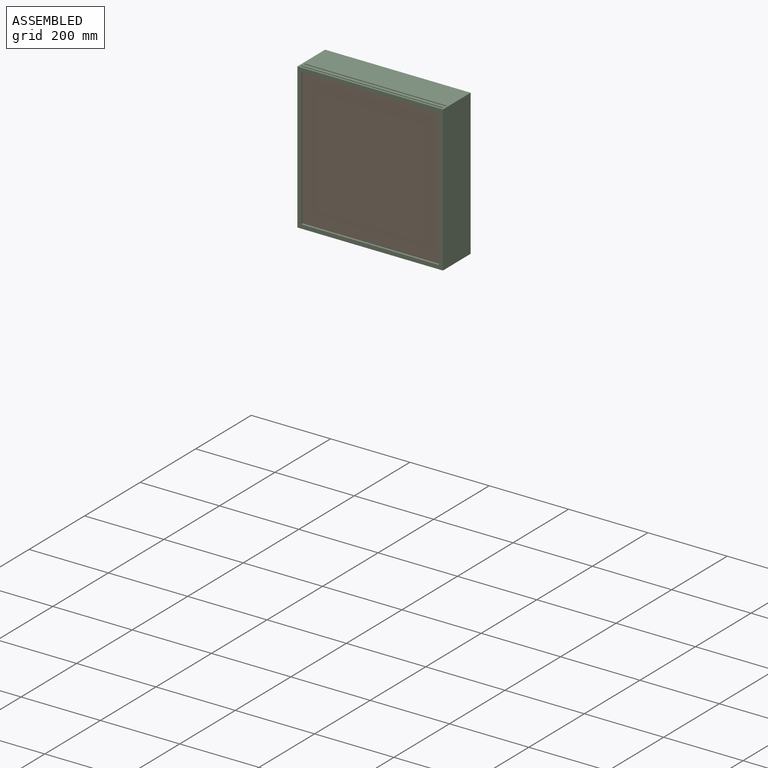
[diagram: assembled view]
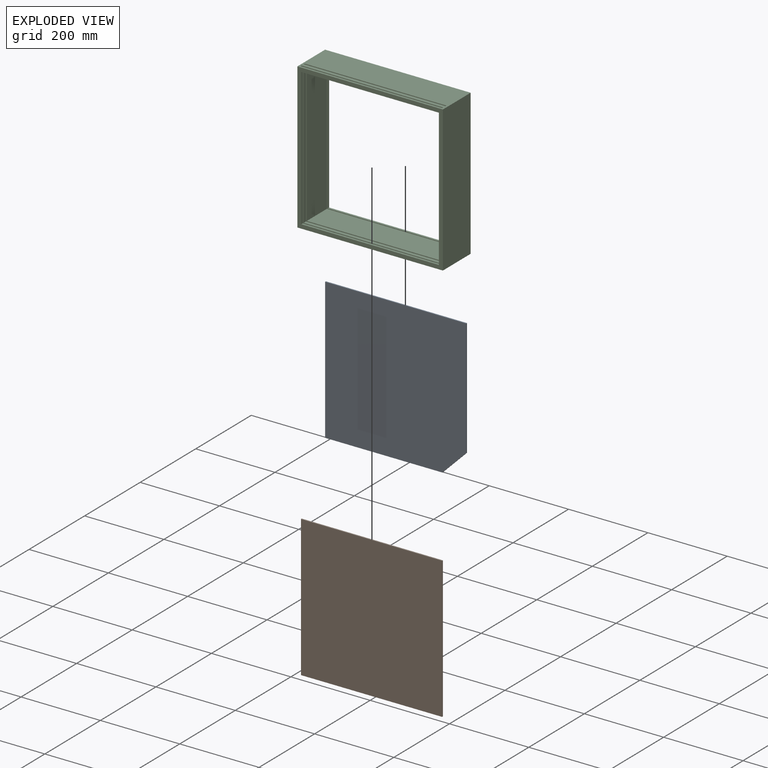
[diagram: exploded view]
GUIDED TOUR — MATED ASSEMBLY (Onshape document d42dfd3bdb61e19cc4f265ea, AutoMate assembly d42dfd3bdb61e19cc4f265ea_4f2ce7b2173d3fb183681990_f46ff38a29e73ddacb30ad9a_default)

This assembly has 3 components, labeled P0..P2 below (a component is one placed occurrence of a part; the same part can appear more than once), held together by 5 mates. A mate is a constraint between two components; its type names the relative motion it leaves free:
  PLANAR — leaves sliding in the plane through the listed point (normal = the listed direction) and rotation about that normal free.
Axis/direction vectors are unit vectors and 'through' points are millimeter coordinates, both in the assembly's world frame.

MATES
  1. PLANAR "Planar 5": P2 <-> P0, direction (0.000, 0.000, 1.000) through (0.00, 93.50, -178.50) mm
  2. PLANAR "Planar 2": P1 <-> P2, direction (0.000, 0.000, -1.000) through (0.00, 6.50, -178.50) mm
  3. PLANAR "Planar 3": P2 <-> P0, direction (1.000, 0.000, 0.000) through (-178.50, 93.50, 0.00) mm
  4. PLANAR "Planar 1": P1 <-> P2, direction (0.000, -1.000, 0.000) through (0.00, 5.00, -0.70) mm
  5. PLANAR "Planar 4": P0 <-> P2, direction (0.000, -1.000, 0.000) through (-2.28, 92.00, 1.58) mm

ASSEMBLY ORDER
  1. P2 — the base component [order verified]
  2. P0 [order verified]
  3. P1 [order verified]
(P0, P1 verified with a relaxed clearance tolerance: the source model stores slight part interference there.)
Order-tag legend:
  [order verified] — this step's position reverses a verified removal order: the component was checked to insert without passing through the ones already placed.

Of the 3 components, 2 carry the full construction recipe — the FeatureScript program that regenerates the part's solid from scratch; the rest are supplied as boundary geometry only.
Each toured component is shown spotlighted twice — in the assembled view, then in the exploded view, where a leader line traces a displaced component back to its assembled socket (saturated green if recipe-attached, orange if geometry-only; every other component desaturated gray) — followed by its recipe or geometry summary and the mates that hold it.
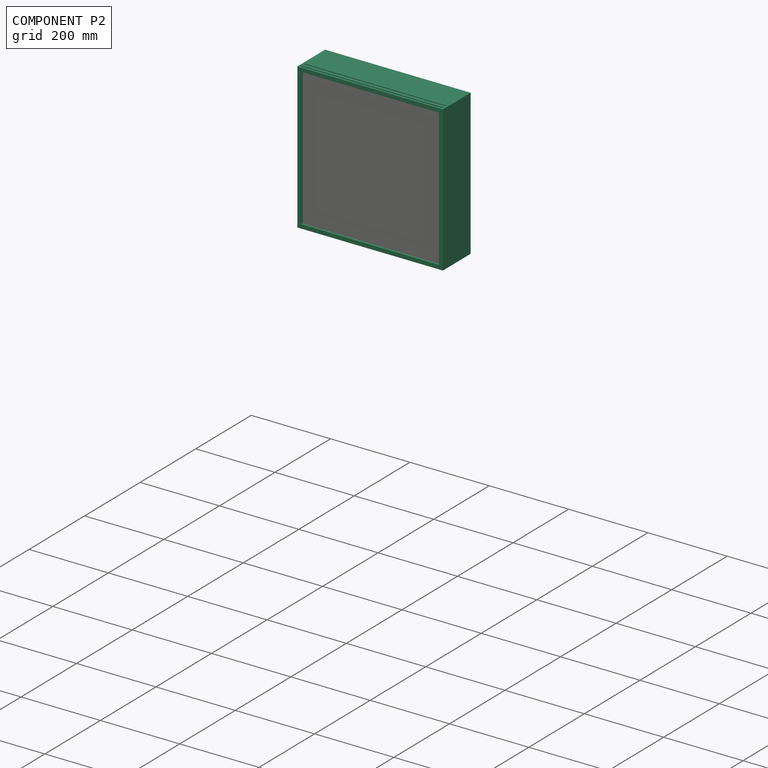
[diagram: component P2 — assembled]
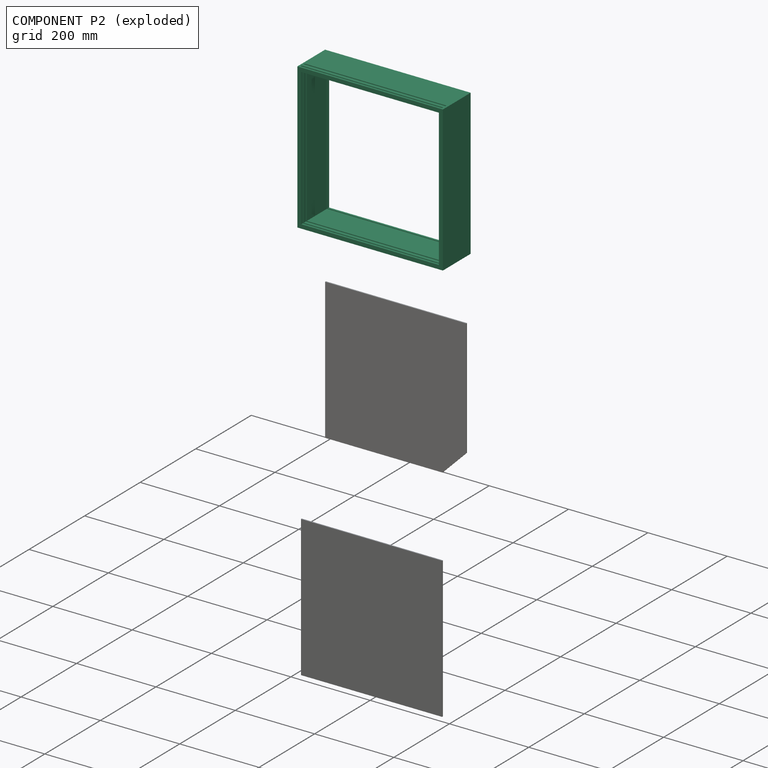
[diagram: component P2 — exploded]
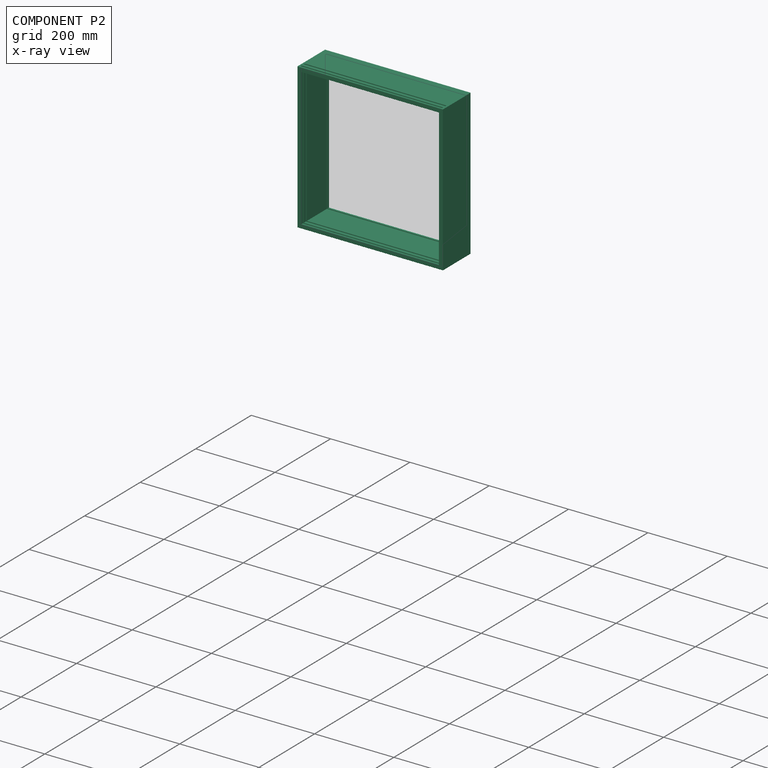
[diagram: component P2 — x-ray view]
COMPONENT P2 — recipe-attached (CADFS 00438447, mesh-verified: the recipe's output STEP matches this component's geometry to below the mesh-comparison resolution (tessellation chordal tolerance ~0.793 mm)).
Held by: PLANAR mate "Planar 5" to P0; PLANAR mate "Planar 2" to P1; PLANAR mate "Planar 3" to P0; PLANAR mate "Planar 1" to P1; PLANAR mate "Planar 4" to P0.
Construction recipe (FeatureScript — the CAD program that rebuilds this solid; sketch coordinates are in the units given by the * unit suffixes, e.g. mm):

FeatureScript 1540;
import(path : "onshape/std/geometry.fs", version : "1540.0");
import(path : "onshape/std/common.fs", version : "1540.0");
const mm = millimeter;
const VERTEX = EntityType.VERTEX;
const EDGE = EntityType.EDGE;
const FACE = EntityType.FACE;
const BODY = EntityType.BODY;
function v(x, y){return vector(x, y);}
function OD(order){return orderDisambiguation(order);}
function OSD(set){return originalSetDisambiguation(set);}
function TD(topology){return topologyDisambiguation(topology);}
function TDD(query){return trueDependencyDisambiguation(query);}
function sQuery(a, b, c) {return sketchEntityQuery(a, b, c);}

annotation { "Feature Type Name" : "Feature", "Feature Type Description" : "" }
export const myFeature = defineFeature(function(context is Context, id is Id, definition is map)
    precondition{}
    {
        {
            var Q0;
            Q0=qCreatedBy(makeId("Front.planeOp"),FACE);
            var sketch = newSketch(context, id + "F0", { "sketchPlane" : qUnion([Q0])});
            skLineSegment(sketch, "E0.bottom", {"start": v(-177.8, 177.8) * mm, "end": v(177.8, 177.8) * mm});
            skLineSegment(sketch, "E0.top", {"start": v(-177.8, -177.8) * mm, "end": v(177.8, -177.8) * mm});
            skLineSegment(sketch, "E0.left", {"start": v(-177.8, 177.8) * mm, "end": v(-177.8, -177.8) * mm});
            skLineSegment(sketch, "E0.right", {"start": v(177.8, 177.8) * mm, "end": v(177.8, -177.8) * mm});
            skSolve(sketch);
        }
        {
            var Q0;
            Q0=qCreatedBy(makeId("Front.planeOp"),FACE);
            var sketch = newSketch(context, id + "F1", { "sketchPlane" : qUnion([Q0])});
            skLineSegment(sketch, "E1.0", {"start": v(-183.5, 183.5) * mm, "end": v(183.5, 183.5) * mm});
            skLineSegment(sketch, "E1.1", {"start": v(-183.5, 183.5) * mm, "end": v(-183.5, -183.5) * mm});
            skLineSegment(sketch, "E1.2", {"start": v(-183.5, -183.5) * mm, "end": v(183.5, -183.5) * mm});
            skLineSegment(sketch, "E1.3", {"start": v(183.5, 183.5) * mm, "end": v(183.5, -183.5) * mm});
            skSolve(sketch);
        }
        {
            var Q0;
            Q0=makeQuery(id+"F1.imprint","IMPRINT",FACE,{"disambiguationData":[TD([[makeQuery(id+"F1.imprint","IMPRINT",EDGE,{"derivedFrom":sQuery(id+"F1.wireOp",EDGE,"E1.0")}),-1.0]])]});
            extrude(context, id + "F2", {"entities" : qUnion([Q0]), "oppositeDirection" : true, "depth" : 100 * mm});
        }
        {
            var Q0;
            Q0=qCreatedBy(makeId("Front.planeOp"),FACE);
            var sketch = newSketch(context, id + "F3", { "sketchPlane" : qUnion([Q0])});
            skLineSegment(sketch, "E2.0", {"start": v(-173.5, 173.5) * mm, "end": v(173.5, 173.5) * mm});
            skLineSegment(sketch, "E2.1", {"start": v(-173.5, 173.5) * mm, "end": v(-173.5, -173.5) * mm});
            skLineSegment(sketch, "E2.2", {"start": v(-173.5, -173.5) * mm, "end": v(173.5, -173.5) * mm});
            skLineSegment(sketch, "E2.3", {"start": v(173.5, 173.5) * mm, "end": v(173.5, -173.5) * mm});
            skSolve(sketch);
        }
        {
            var Q0;
            Q0=makeQuery(id+"F3.imprint","IMPRINT",FACE,{"disambiguationData":[TD([[makeQuery(id+"F3.imprint","IMPRINT",EDGE,{"derivedFrom":sQuery(id+"F3.wireOp",EDGE,"E2.0")}),-1.0]])]});
            extrude(context, id + "F4", {"entities" : qUnion([Q0]), "operationType" : NewBodyOperationType.REMOVE, "endBound" : BoundingType.THROUGH_ALL, "oppositeDirection" : true, "depth" : 25 * mm});
        }
        {
            var Q0;
            Q0=qCreatedBy(makeId("Front.planeOp"),FACE);
            cPlane(context, id + "F5", {"entities" : qUnion([Q0]), "cplaneType" : CPlaneType.OFFSET, "offset" : 5 * mm, "oppositeDirection" : true, "width" : 150 * mm, "height" : 150 * mm});
        }
        {
            var Q0;
            Q0=qCreatedBy(id+"F5.planeOp",FACE);
            var sketch = newSketch(context, id + "F6", { "sketchPlane" : qUnion([Q0])});
            skLineSegment(sketch, "E3.1", {"start": v(-178.5, 183.5) * mm, "end": v(-178.5, -178.5) * mm});
            skLineSegment(sketch, "E3.2", {"start": v(-178.5, -178.5) * mm, "end": v(178.5, -178.5) * mm});
            skLineSegment(sketch, "E3.3", {"start": v(178.5, 183.5) * mm, "end": v(178.5, -178.5) * mm});
            skLineSegment(sketch, "E4", {"start": v(-178.5, 183.5) * mm, "end": v(178.5, 183.5) * mm});
            skSolve(sketch);
        }
        {
            var Q0;
            Q0 = qSketchRegion(id + "F6", true);
            extrude(context, id + "F7", {"entities" : qUnion([Q0]), "operationType" : NewBodyOperationType.REMOVE, "oppositeDirection" : true, "depth" : 3.5 * mm});
        }
        {
            var Q0;
            Q0=qCreatedBy(makeId("Front.planeOp"),FACE);
            cPlane(context, id + "F8", {"entities" : qUnion([Q0]), "cplaneType" : CPlaneType.OFFSET, "offset" : 95 * mm, "oppositeDirection" : true, "width" : 150 * mm, "height" : 150 * mm});
        }
        {
            var Q0;
            Q0=qCreatedBy(id+"F8.planeOp",FACE);
            var sketch = newSketch(context, id + "F9", { "sketchPlane" : qUnion([Q0])});
            skLineSegment(sketch, "E5.0", {"start": v(-178.5, 178.5) * mm, "end": v(-178.5, -178.5) * mm});
            skLineSegment(sketch, "E6.0", {"start": v(178.5, 178.5) * mm, "end": v(178.5, -178.5) * mm});
            skLineSegment(sketch, "E7.0", {"start": v(-178.5, -178.5) * mm, "end": v(178.5, -178.5) * mm});
            skLineSegment(sketch, "E8", {"start": v(-178.5, 178.5) * mm, "end": v(178.5, 178.5) * mm});
            skPoint(sketch, "E9.orphan", {"position": v(-178.5, 183.5) * mm});
            skPoint(sketch, "E10.orphan", {"position": v(178.5, 183.5) * mm});
            skSolve(sketch);
        }
        {
            var Q0;
            Q0 = qSketchRegion(id + "F9", true);
            extrude(context, id + "F10", {"entities" : qUnion([Q0]), "operationType" : NewBodyOperationType.REMOVE, "depth" : 3 * mm});
        }
        {
            var Q0;
            Q0=qCreatedBy(makeId("Front.planeOp"),FACE);
            cPlane(context, id + "F11", {"entities" : qUnion([Q0]), "cplaneType" : CPlaneType.OFFSET, "offset" : 16.5 * mm, "oppositeDirection" : true, "width" : 150 * mm, "height" : 150 * mm});
        }
        {
            var Q0;
            Q0=qCreatedBy(id+"F11.planeOp",FACE);
            var sketch = newSketch(context, id + "F12", { "sketchPlane" : qUnion([Q0])});
            skLineSegment(sketch, "E11.0", {"start": v(-178.5, 183.5) * mm, "end": v(-178.5, -178.5) * mm});
            skLineSegment(sketch, "E12.0", {"start": v(-178.5, 183.5) * mm, "end": v(178.5, 183.5) * mm});
            skLineSegment(sketch, "E13.0", {"start": v(178.5, 183.5) * mm, "end": v(178.5, -178.5) * mm});
            skLineSegment(sketch, "E14.0", {"start": v(-178.5, -178.5) * mm, "end": v(178.5, -178.5) * mm});
            skSolve(sketch);
        }
        {
            var Q0;
            Q0 = qSketchRegion(id + "F12", true);
            extrude(context, id + "F13", {"entities" : qUnion([Q0]), "operationType" : NewBodyOperationType.REMOVE, "oppositeDirection" : true, "depth" : 3.5 * mm});
        }
    });
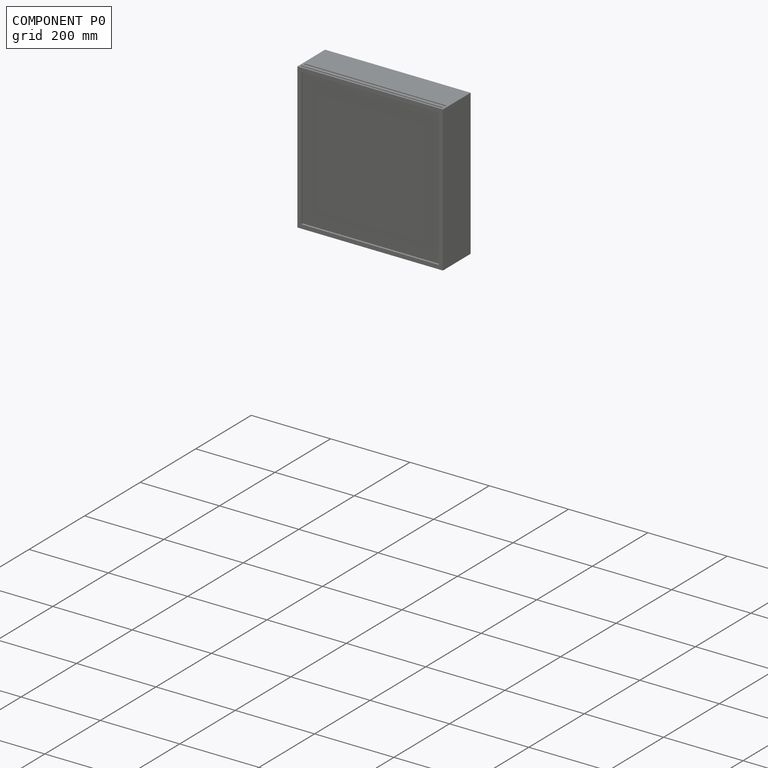
[diagram: component P0 — assembled]
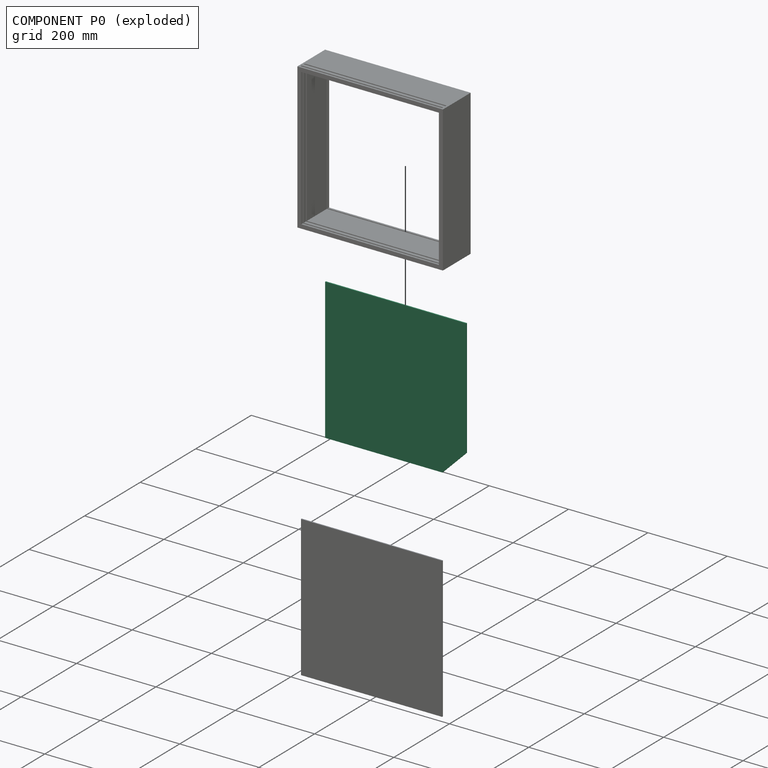
[diagram: component P0 — exploded]
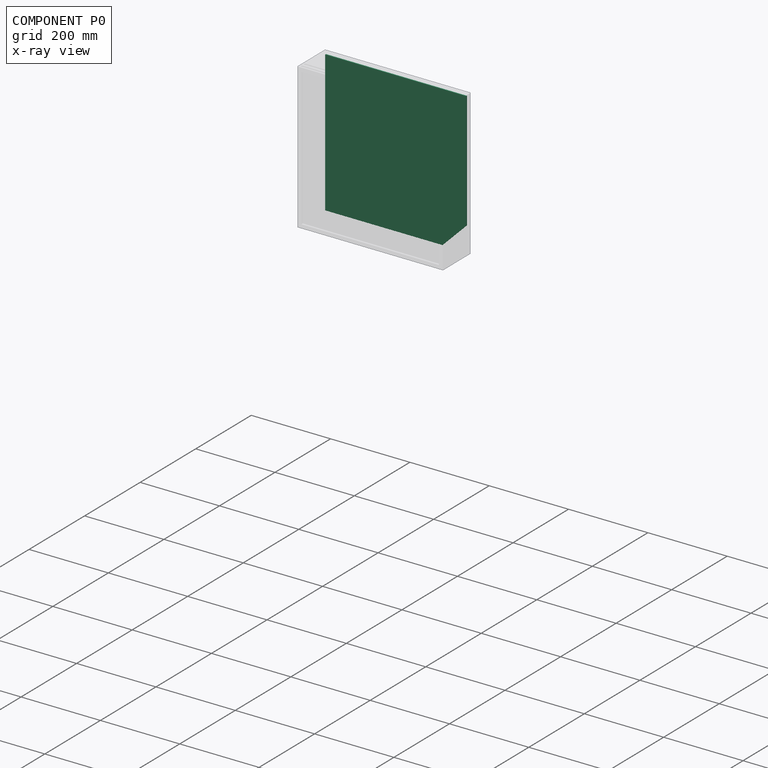
[diagram: component P0 — x-ray view]
COMPONENT P0 — recipe-attached (CADFS 00438448, mesh-verified: the recipe's output STEP matches this component's geometry to below the mesh-comparison resolution (tessellation chordal tolerance ~0.754 mm)).
Held by: PLANAR mate "Planar 5" to P2; PLANAR mate "Planar 3" to P2; PLANAR mate "Planar 4" to P2.
Construction recipe (FeatureScript — the CAD program that rebuilds this solid; sketch coordinates are in the units given by the * unit suffixes, e.g. mm):

FeatureScript 1540;
import(path : "onshape/std/geometry.fs", version : "1540.0");
import(path : "onshape/std/common.fs", version : "1540.0");
const mm = millimeter;
const VERTEX = EntityType.VERTEX;
const EDGE = EntityType.EDGE;
const FACE = EntityType.FACE;
const BODY = EntityType.BODY;
function v(x, y){return vector(x, y);}
function OD(order){return orderDisambiguation(order);}
function OSD(set){return originalSetDisambiguation(set);}
function TD(topology){return topologyDisambiguation(topology);}
function TDD(query){return trueDependencyDisambiguation(query);}
function sQuery(a, b, c) {return sketchEntityQuery(a, b, c);}

annotation { "Feature Type Name" : "Feature", "Feature Type Description" : "" }
export const myFeature = defineFeature(function(context is Context, id is Id, definition is map)
    precondition{}
    {
        {
            var Q0;
            Q0=qCreatedBy(makeId("Front.planeOp"),FACE);
            var sketch = newSketch(context, id + "F0", { "sketchPlane" : qUnion([Q0])});
            skLineSegment(sketch, "E0.bottom", {"start": v(-177.8, 177.8) * mm, "end": v(177.8, 177.8) * mm});
            skLineSegment(sketch, "E0.top", {"start": v(-177.8, -177.8) * mm, "end": v(177.8, -177.8) * mm});
            skLineSegment(sketch, "E0.left", {"start": v(-177.8, 177.8) * mm, "end": v(-177.8, -177.8) * mm});
            skLineSegment(sketch, "E0.right", {"start": v(177.8, 177.8) * mm, "end": v(177.8, -177.8) * mm});
            skSolve(sketch);
        }
        {
            var Q0;
            Q0=makeQuery(id+"F0.imprint","IMPRINT",FACE,{"disambiguationData":[TD([[makeQuery(id+"F0.imprint","IMPRINT",EDGE,{"derivedFrom":sQuery(id+"F0.wireOp",EDGE,"E0.bottom")}),-1.0]])]});
            extrude(context, id + "F1", {"entities" : qUnion([Q0]), "depth" : 3 * mm});
        }
        {
            var Q0;
            Q0=makeQuery(id+"F1.opExtrude","CAP_FACE",FACE,{"disambiguationData":[OSD([sQuery(id+"F0.wireOp",EDGE,"E0.bottom"),sQuery(id+"F0.wireOp",EDGE,"E0.top"),sQuery(id+"F0.wireOp",EDGE,"E0.left"),sQuery(id+"F0.wireOp",EDGE,"E0.right")])],"isStart":false});
            var sketch = newSketch(context, id + "F2", { "sketchPlane" : qUnion([Q0])});
            skLineSegment(sketch, "E1", {"start": v(117.8, -177.8) * mm, "end": v(177.8, -177.8) * mm});
            skLineSegment(sketch, "E2", {"start": v(177.8, -177.8) * mm, "end": v(177.8, -117.8) * mm});
            skLineSegment(sketch, "E3", {"start": v(177.8, -117.8) * mm, "end": v(117.8, -177.8) * mm});
            skSolve(sketch);
        }
        {
            var Q0;
            Q0=makeQuery(id+"F2.imprint","IMPRINT",FACE,{"disambiguationData":[TD([[makeQuery(id+"F2.imprint","IMPRINT",EDGE,{"derivedFrom":sQuery(id+"F2.wireOp",EDGE,"E1")}),1.0]])]});
            extrude(context, id + "F3", {"entities" : qUnion([Q0]), "operationType" : NewBodyOperationType.REMOVE, "endBound" : BoundingType.THROUGH_ALL, "oppositeDirection" : true, "depth" : 25 * mm});
        }
    });
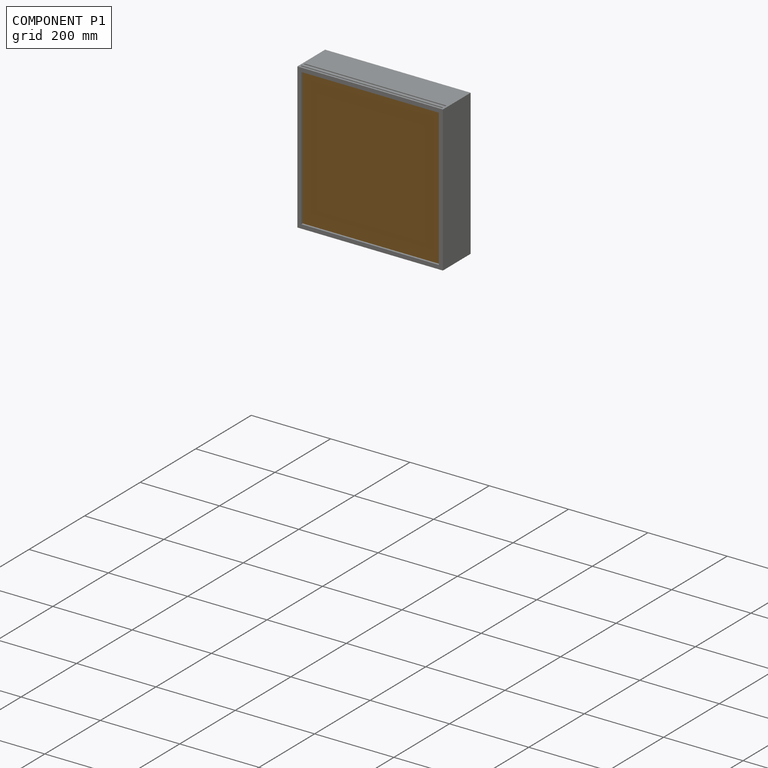
[diagram: component P1 — assembled]
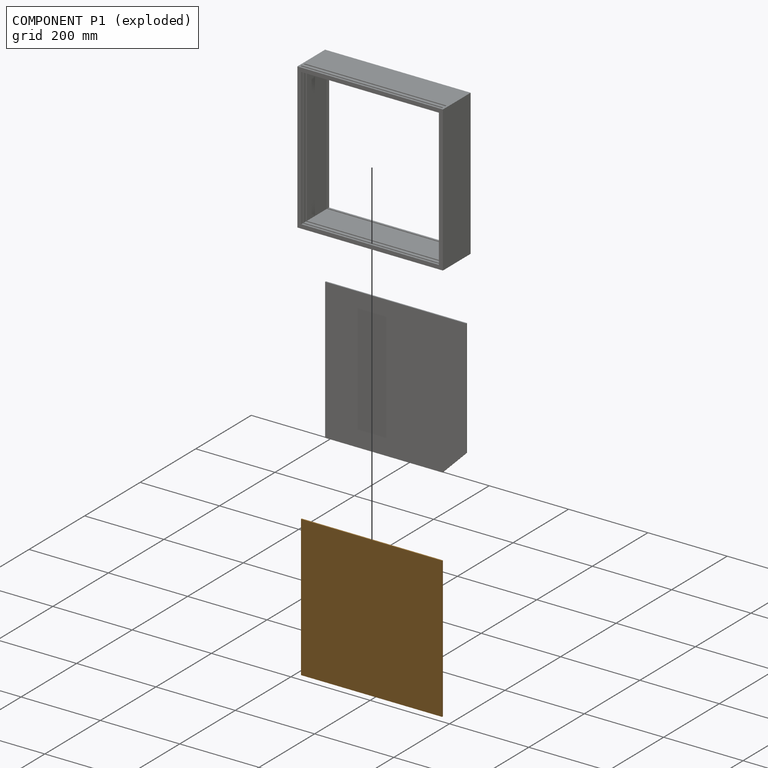
[diagram: component P1 — exploded]
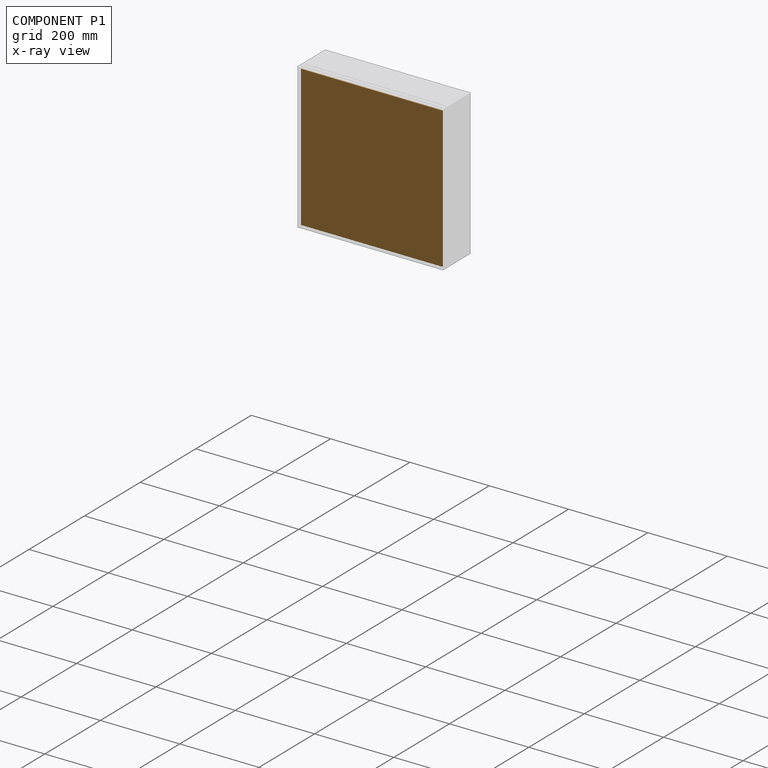
[diagram: component P1 — x-ray view]
COMPONENT P1 — geometry summary (no construction recipe available for this part):
  bounding box: 355.6 x 355.6 x 3.0 mm
  B-rep topology: 1 solid, 6 faces, 24 edges
  volume: 379354 mm^3 (100% of its bounding box)
  symmetry: 2-fold rotationally symmetric about the x axis; 4-fold rotationally symmetric about the y axis; 2-fold rotationally symmetric about the z axis; mirror-symmetric across its x mid-plane, y mid-plane, z mid-plane
Held by: PLANAR mate "Planar 2" to P2; PLANAR mate "Planar 1" to P2.
PROVENANCE & LICENSES
Assembly (occurrences, transforms, mates, per-part STEP geometry): AutoMate dataset, Zenodo record 7776208, CC0.
Construction recipes: CADFS (HuggingFace VladPyatov/CADFS, CC-BY-4.0, layered over the ABC dataset), FeatureScript reconstruction programs keyed by ABC model id.
Join: ABC meta listings map ABC model id -> Onshape documentId; within a shared document, parts are matched by geometric signature (bounding-box dims + volume at 0.1% relative tolerance, exact B-rep face/solid counts).
Verification: 2 of this assembly's 3 components carry a recipe attachment, and every attachment is mesh-verified: the CADFS STEP and the AutoMate member STEP were compared as meshes in their shared local frame (symmetric sampled-point-to-mesh distance); worst across the 2 attachments: below the mesh-comparison resolution (tessellation chordal tolerance ~0.793 mm) on a 529 mm part.
Renders: orthographic iso camera (az 35 / el 25); the floor grid conveys scale (grid pitch printed in each image; no ruler). In the exploded view each component is displaced by its stored offset vector: the offsets alone carry the explosion direction (mate normal/axis signs are not orientation cues and do not encode it), and separation distances are assigned per mate-chain, not proportionally to assembly-order depth.
